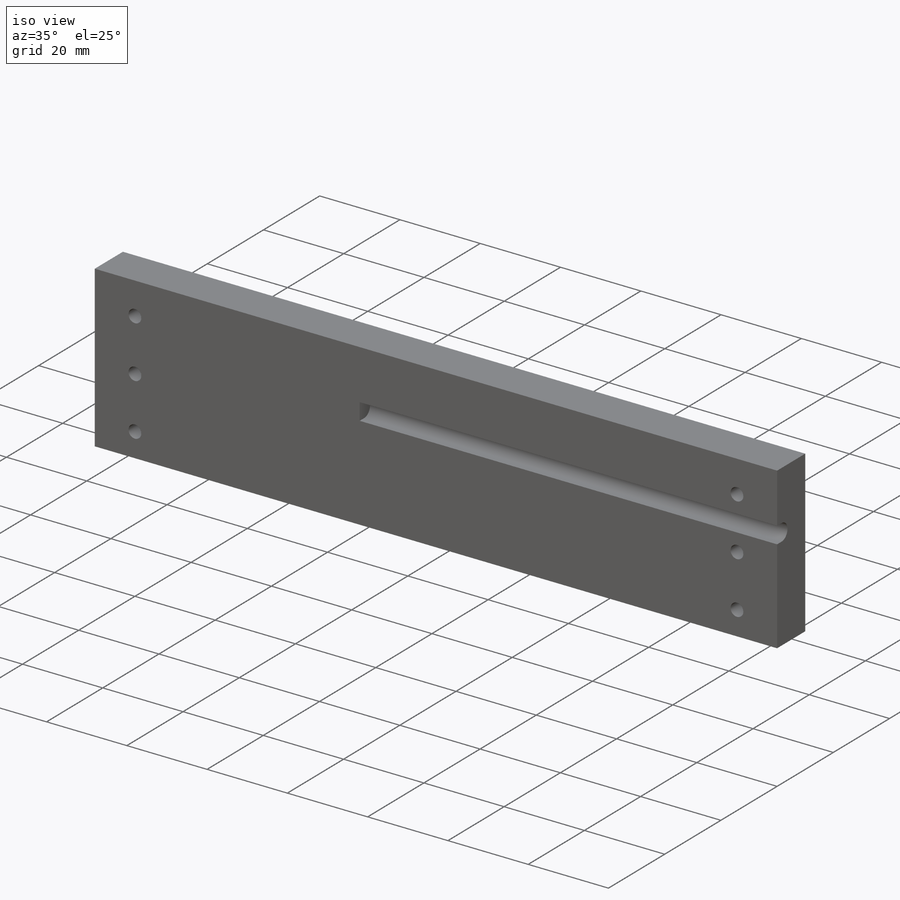
[diagram: iso view]
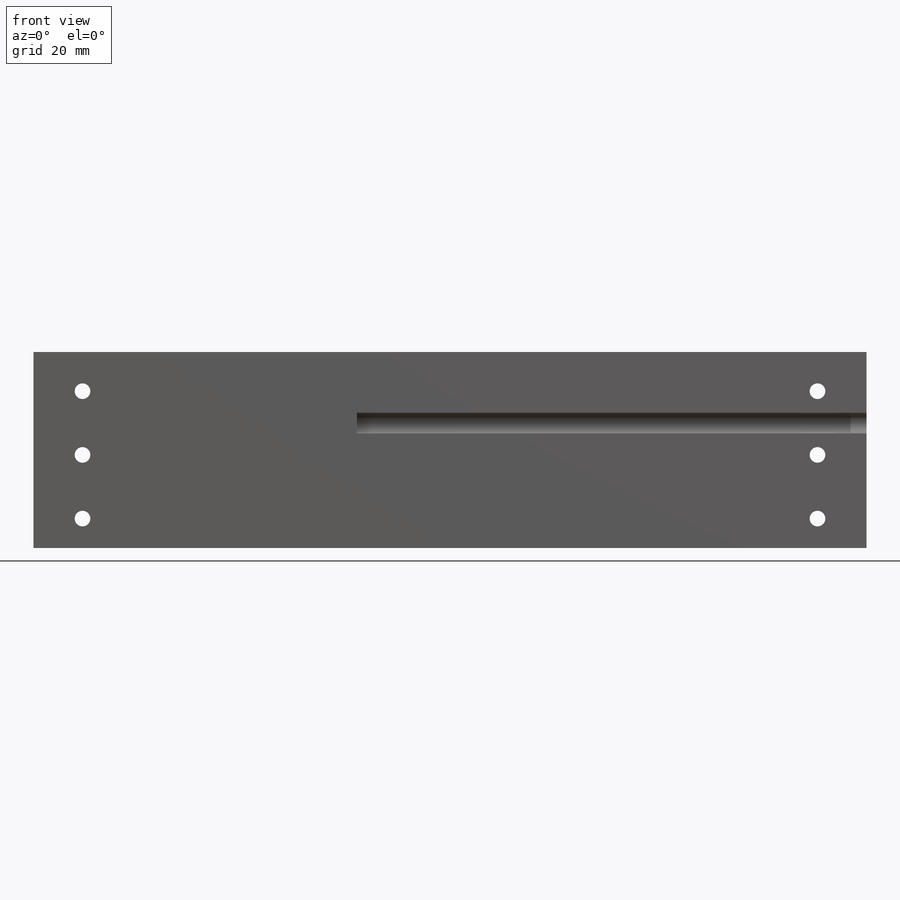
[diagram: front view]
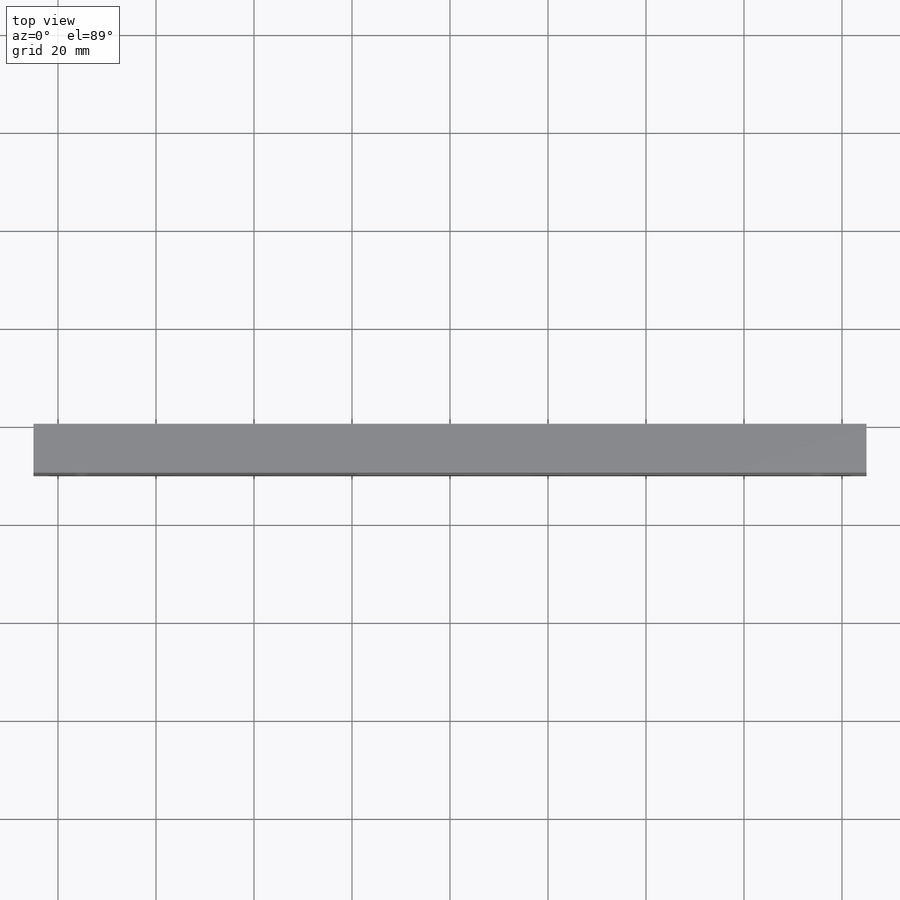
[diagram: top view]
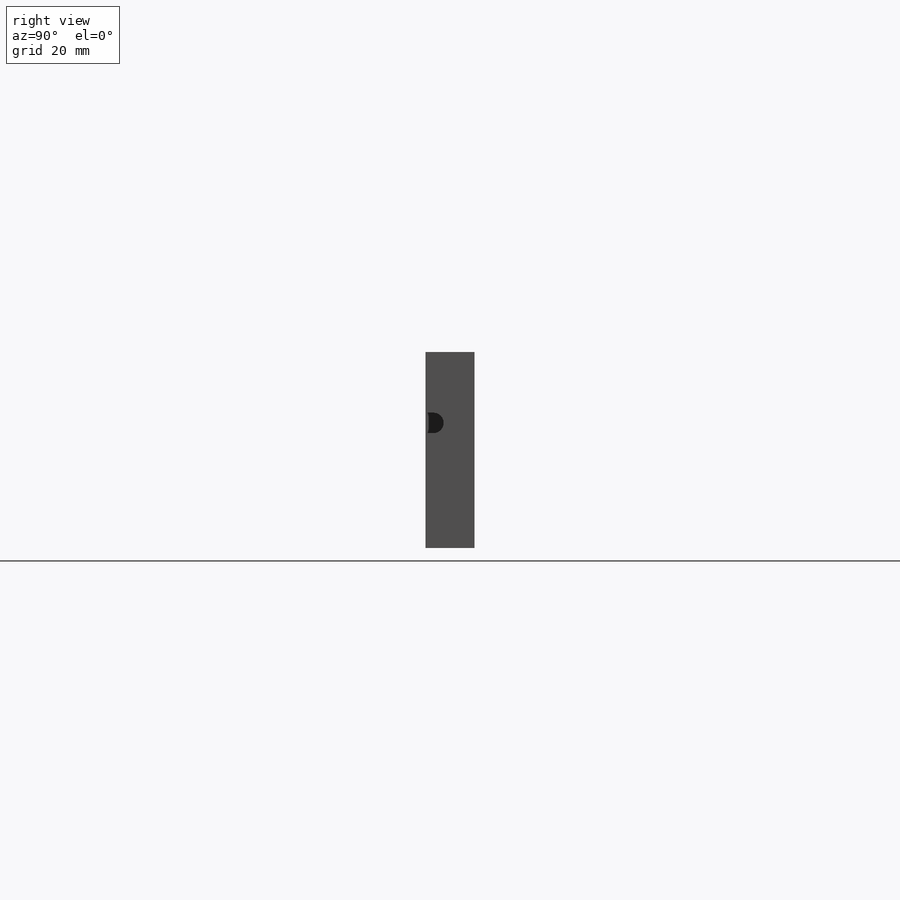
[diagram: right view]
SOLIDWORKS PART (.sldprt)
format: sldprt  version: not decoded by parser v0  size: 193,024 bytes
history: native  units: mm
features: sketch x4, cut_extrude x3, material x1, extrude x1, mirror x1, pattern_linear x1 (+11 scaffold rows collapsed)
feature tree (22):
  scaffold x11  (default folders/planes/origin — collapsed)
  material  "Material <not specified>"
  sketch  "Sketch1"  dims[D1=170.0mm D2=40.0mm]
  extrude  "Boss-Extrude1"  Depth=10mm
  sketch  "Sketch2"  dims[D1=3.2mm D2=75.0mm D3=6.0mm]
  cut_extrude  "Cut-M3 Hole"  [1 undecoded]
  mirror  "Mirror1"
  pattern_linear  "LPattern1"  Count1=3 Count2=1 Spacing1=13mm Spacing2=10mm
  sketch  "Sketch3"  dims[D1=4.2mm D2=0.5mm]
  cut_extrude  "Cut-Tube Slot"  Depth=104mm
  sketch  "Sketch4"
  cut_extrude  "Cut-Extrude3"  [1 undecoded]
decode coverage: 6 of 10 modeling features carry decoded parameters
note: 2 parameter values undecoded
note: suppression state not decoded; provenance and decode notes live in map.json
